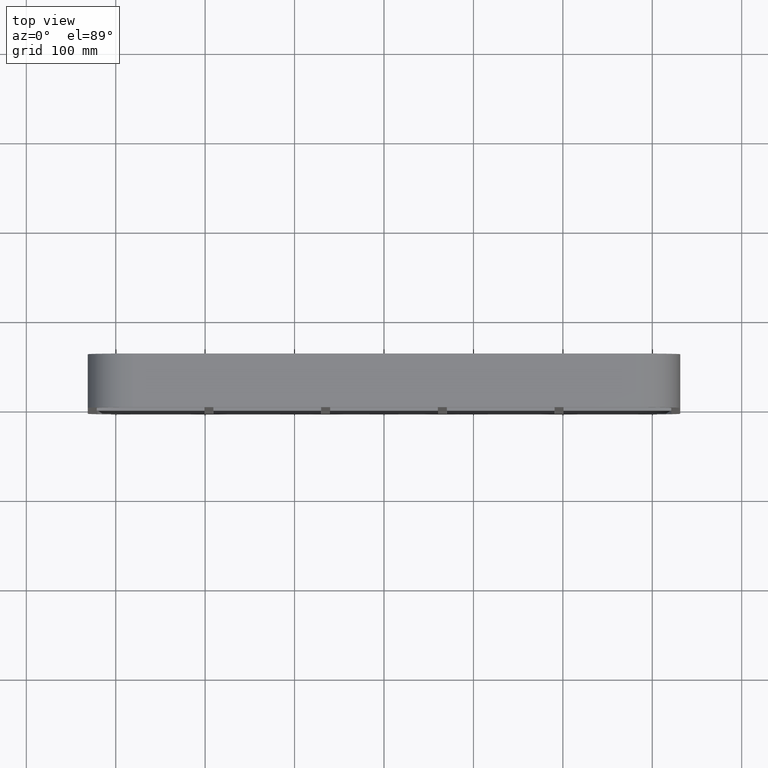
[diagram: clean part render]
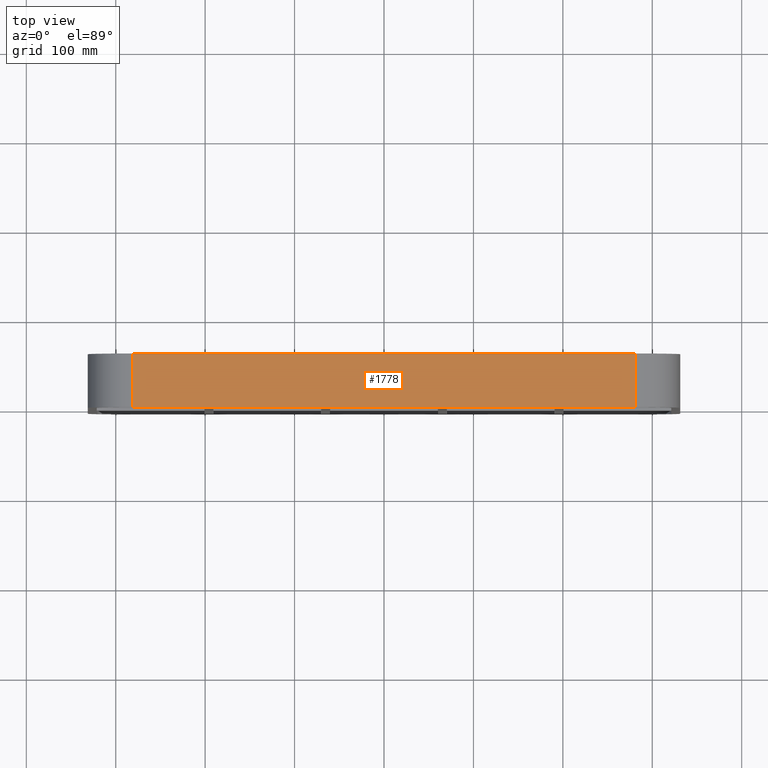
[diagram: same view with one face highlighted and labeled with its STEP entity id]
A machine part, top view. The second image highlights one B-rep face of the part: STEP entity #1778.
In plain terms, the highlighted planar face has unit normal (0, 0, 1).
Its self-contained STEP definition (entity closure, byte-faithful):
#678=CARTESIAN_POINT('',(281.25,-3.0,238.0));
#679=VERTEX_POINT('',#678);
#687=CARTESIAN_POINT('',(-281.25,-3.0,238.0));
#688=VERTEX_POINT('',#687);
#689=CARTESIAN_POINT('',(281.25,-3.0,238.0));
#690=DIRECTION('',(-1.0,0.0,0.0));
#691=VECTOR('',#690,562.5);
#692=LINE('',#689,#691);
#693=EDGE_CURVE('',#679,#688,#692,.T.);
#1080=CARTESIAN_POINT('',(-281.25,57.0,238.0));
#1081=VERTEX_POINT('',#1080);
#1089=CARTESIAN_POINT('',(281.25,57.0,238.0));
#1090=VERTEX_POINT('',#1089);
#1091=CARTESIAN_POINT('',(-281.25,57.0,238.0));
#1092=DIRECTION('',(1.0,0.0,0.0));
#1093=VECTOR('',#1092,562.5);
#1094=LINE('',#1091,#1093);
#1095=EDGE_CURVE('',#1081,#1090,#1094,.T.);
#1702=CARTESIAN_POINT('',(281.25,57.0,238.0));
#1703=DIRECTION('',(0.0,-1.0,0.0));
#1704=VECTOR('',#1703,60.0);
#1705=LINE('',#1702,#1704);
#1706=EDGE_CURVE('',#1090,#679,#1705,.T.);
#1758=CARTESIAN_POINT('',(-281.25,-3.0,238.0));
#1759=DIRECTION('',(0.0,1.0,0.0));
#1760=VECTOR('',#1759,60.0);
#1761=LINE('',#1758,#1760);
#1762=EDGE_CURVE('',#688,#1081,#1761,.T.);
#1767=CARTESIAN_POINT('',(-331.25,0.0,238.0));
#1768=DIRECTION('',(0.0,0.0,1.0));
#1769=DIRECTION('',(1.0,0.0,0.0));
#1770=AXIS2_PLACEMENT_3D('',#1767,#1768,#1769);
#1771=PLANE('',#1770);
#1772=ORIENTED_EDGE('',*,*,#1706,.F.);
#1773=ORIENTED_EDGE('',*,*,#1095,.F.);
#1774=ORIENTED_EDGE('',*,*,#1762,.F.);
#1775=ORIENTED_EDGE('',*,*,#693,.F.);
#1776=EDGE_LOOP('',(#1772,#1773,#1774,#1775));
#1777=FACE_OUTER_BOUND('',#1776,.T.);
#1778=ADVANCED_FACE('',(#1777),#1771,.T.);